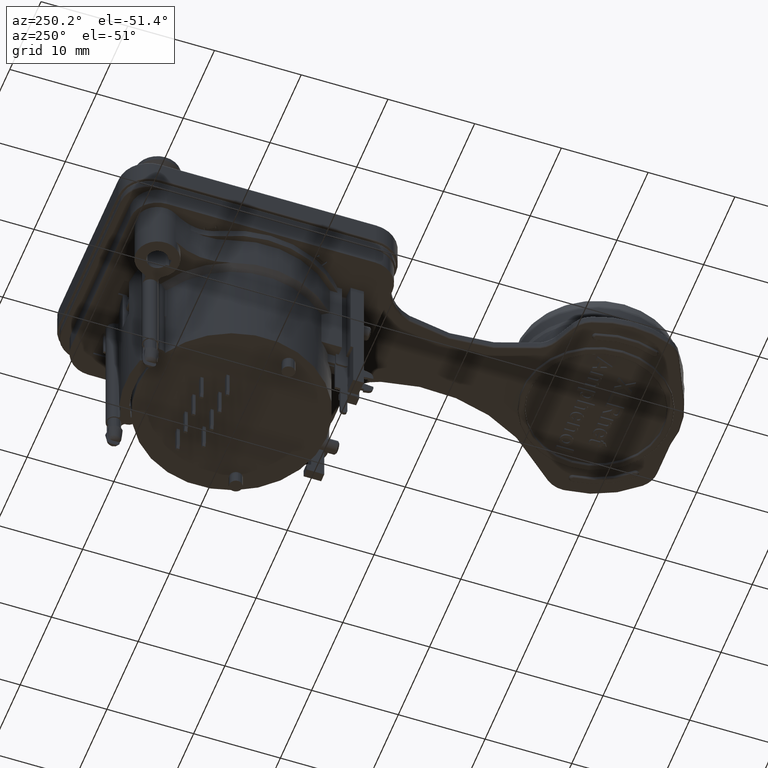
[diagram: clean part render]
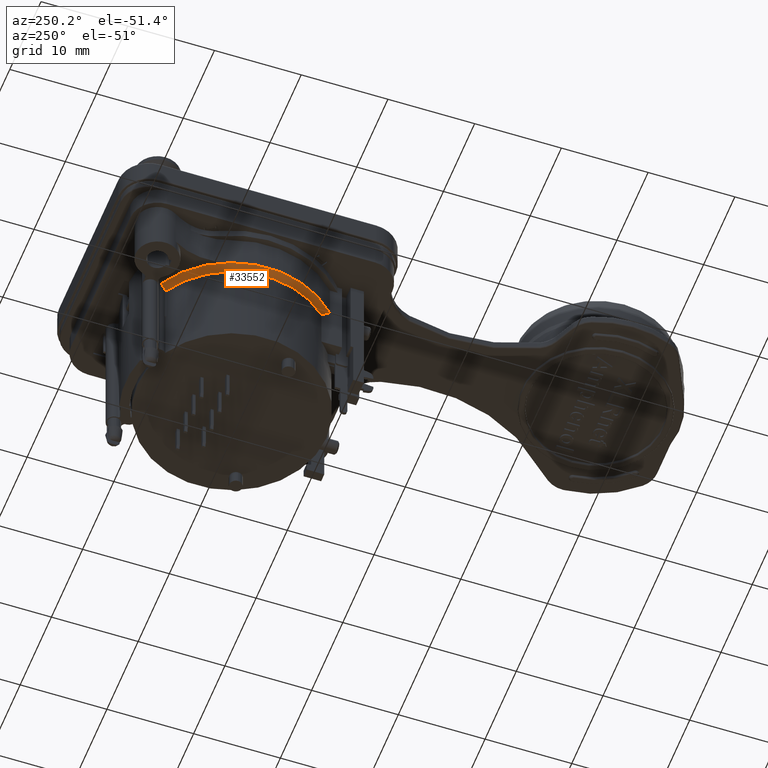
[diagram: same view with one face highlighted and labeled with its STEP entity id]
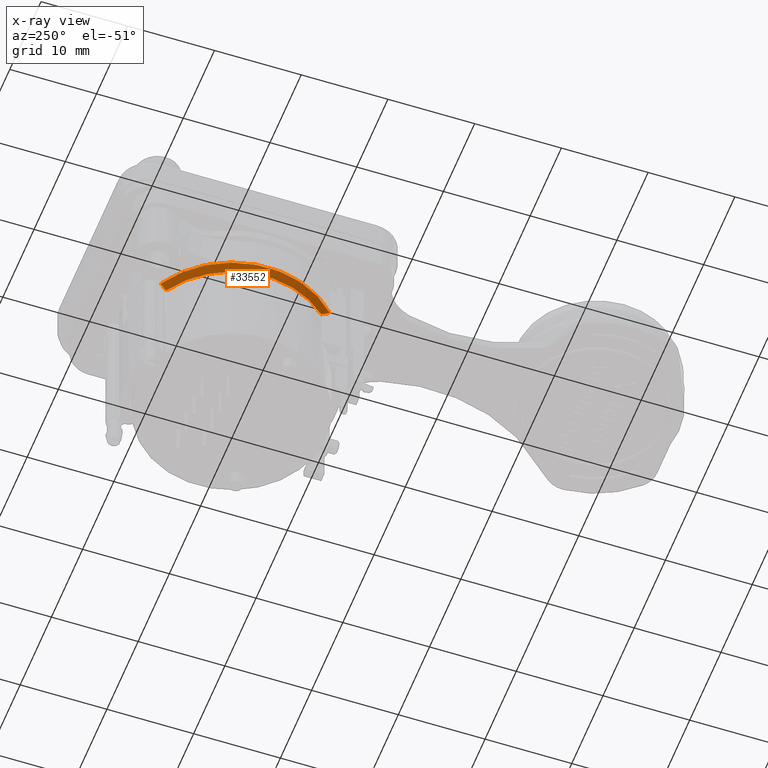
[diagram: x-ray of the same camera — body ghosted, the highlighted face saturated]
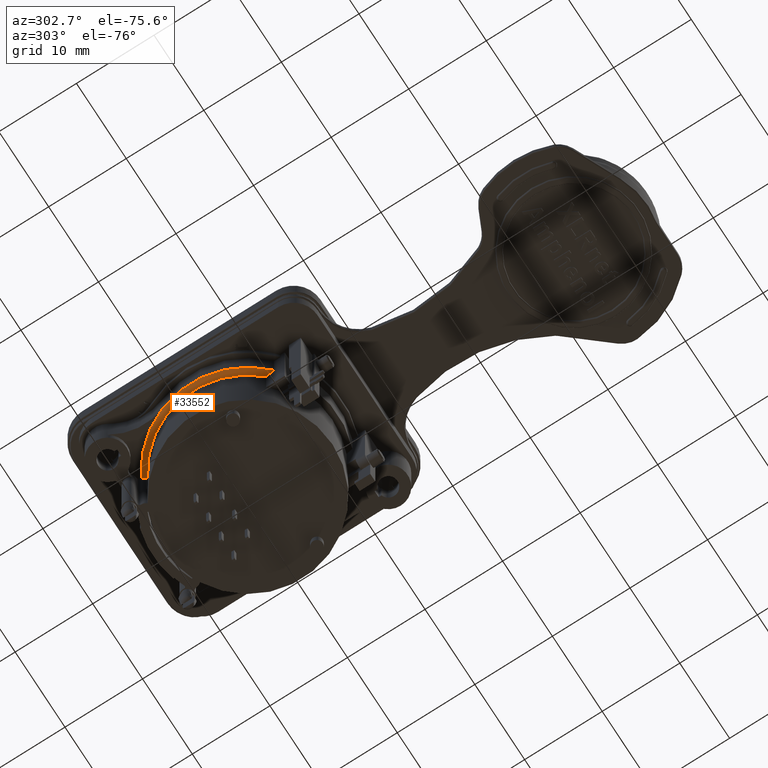
[diagram: same view with one face highlighted and labeled with its STEP entity id]
A machine part, auxiliary view. The second image highlights one B-rep face of the part: STEP entity #33552.
The next image is the same camera in x-ray: the body ghosted, the highlighted face saturated — about 0% of this face is hidden behind the body in this view.
A second angle (auxiliary view) of the same face is appended — the face is thin or edge-on in the first view.
In plain terms, the highlighted conical surface has half-angle 45 deg.
Its self-contained STEP definition (entity closure, byte-faithful):
#1015=(
BOUNDED_CURVE()
B_SPLINE_CURVE(2,(#90730,#90731,#90732),.UNSPECIFIED.,.F.,.F.)
B_SPLINE_CURVE_WITH_KNOTS((3,3),(8.73691020827419,8.99450641198548),
 .UNSPECIFIED.)
CURVE()
GEOMETRIC_REPRESENTATION_ITEM()
RATIONAL_B_SPLINE_CURVE((2.87066901525943,2.82152484132858,2.76785661768043))
REPRESENTATION_ITEM('')
);
#1103=CONICAL_SURFACE('',#35703,11.25,0.785398163397446);
#4548=FACE_OUTER_BOUND('',#6384,.T.);
#6384=EDGE_LOOP('',(#30035,#30036,#30037,#30038,#30039,#30040));
#8086=B_SPLINE_CURVE_WITH_KNOTS('',3,(#91007,#91008,#91009,#91010,#91011,
#91012,#91013,#91014,#91015,#91016,#91017,#91018),.UNSPECIFIED.,.F.,.F.,
(4,2,2,2,2,4),(0.0725353796841605,0.0742043170634966,0.0849765618743428,
0.0957488066851889,0.103101509806697,0.110454212928206),.UNSPECIFIED.);
#8087=B_SPLINE_CURVE_WITH_KNOTS('',3,(#91020,#91021,#91022,#91023,#91024,
#91025,#91026,#91027,#91028),.UNSPECIFIED.,.F.,.F.,(4,2,3,4),(0.600541604216335,
0.612655591836204,0.660240279945532,0.667731266076222),.UNSPECIFIED.);
#13614=CIRCLE('',#35669,11.6);
#13625=CIRCLE('',#35686,11.6);
#13632=CIRCLE('',#35704,10.9);
#16417=VERTEX_POINT('',#90726);
#16418=VERTEX_POINT('',#90728);
#16473=VERTEX_POINT('',#90922);
#16483=VERTEX_POINT('',#90955);
#16494=VERTEX_POINT('',#91005);
#16495=VERTEX_POINT('',#91006);
#20993=EDGE_CURVE('',#16417,#16418,#1015,.T.);
#21085=EDGE_CURVE('',#16418,#16473,#13614,.T.);
#21102=EDGE_CURVE('',#16473,#16483,#13625,.T.);
#21125=EDGE_CURVE('',#16494,#16495,#8086,.F.);
#21126=EDGE_CURVE('',#16417,#16494,#13632,.T.);
#21127=EDGE_CURVE('',#16483,#16495,#8087,.T.);
#30035=ORIENTED_EDGE('',*,*,#21125,.F.);
#30036=ORIENTED_EDGE('',*,*,#21126,.F.);
#30037=ORIENTED_EDGE('',*,*,#20993,.T.);
#30038=ORIENTED_EDGE('',*,*,#21085,.T.);
#30039=ORIENTED_EDGE('',*,*,#21102,.T.);
#30040=ORIENTED_EDGE('',*,*,#21127,.T.);
#33552=ADVANCED_FACE('',(#4548),#1103,.T.);
#35669=AXIS2_PLACEMENT_3D('',#90924,#41673,#41674);
#35686=AXIS2_PLACEMENT_3D('',#90957,#41713,#41714);
#35703=AXIS2_PLACEMENT_3D('',#91004,#41761,#41762);
#35704=AXIS2_PLACEMENT_3D('',#91019,#41763,#41764);
#41673=DIRECTION('center_axis',(5.72118872610934E-18,8.32667268468867E-17,
-1.));
#41674=DIRECTION('ref_axis',(-0.476560224863369,0.879141827055325,7.04767713872882E-17));
#41713=DIRECTION('center_axis',(5.72118872610934E-18,8.32667268468867E-17,
-1.));
#41714=DIRECTION('ref_axis',(-0.476560224863369,0.879141827055325,7.04767713872882E-17));
#41761=DIRECTION('center_axis',(-5.72118872610934E-18,-8.32667268468867E-17,
1.));
#41762=DIRECTION('ref_axis',(-0.476560224863369,0.879141827055325,7.04767713872882E-17));
#41763=DIRECTION('center_axis',(5.72118872610934E-18,8.32667268468867E-17,
-1.));
#41764=DIRECTION('ref_axis',(1.,7.16992331441682E-16,5.7211887261095E-18));
#90726=CARTESIAN_POINT('',(-7.945,-7.46237060189321,-5.75));
#90728=CARTESIAN_POINT('',(-7.94500000000001,-8.45203969465359,-5.05));
#90730=CARTESIAN_POINT('Ctrl Pts',(-7.945,-7.46237060189321,-5.75));
#90731=CARTESIAN_POINT('Ctrl Pts',(-7.94500000000001,-7.94181029571935,
-5.42176544251479));
#90732=CARTESIAN_POINT('Ctrl Pts',(-7.94500000000001,-8.45203969465359,
-5.05));
#90922=CARTESIAN_POINT('',(-10.8839381111525,4.01246697090478,-5.05));
#90924=CARTESIAN_POINT('Origin',(2.88920030668527E-17,4.20496970576781E-16,
-5.05));
#90955=CARTESIAN_POINT('',(-5.52809860841507,10.1980451938418,-5.05));
#90957=CARTESIAN_POINT('Origin',(2.88920030668527E-17,4.20496970576781E-16,
-5.05));
#91004=CARTESIAN_POINT('Origin',(3.0894419120991E-17,4.49640324973192E-16,
-5.4));
#91005=CARTESIAN_POINT('',(-5.45640509806144,9.43597601765971,-5.75));
#91006=CARTESIAN_POINT('',(-5.38771837677929,9.71637514513338,-5.53984899884566));
#91007=CARTESIAN_POINT('Ctrl Pts',(-5.38771837677929,9.71637514513338,-5.53984899884566));
#91008=CARTESIAN_POINT('Ctrl Pts',(-5.38555317211245,9.71296763919498,-5.54387901778735));
#91009=CARTESIAN_POINT('Ctrl Pts',(-5.38351713093033,9.70953517177121,-5.54786822493614));
#91010=CARTESIAN_POINT('Ctrl Pts',(-5.36929760495279,9.68388930044824,-5.57719237257833));
#91011=CARTESIAN_POINT('Ctrl Pts',(-5.36036167450728,9.6573738740629,-5.60472003436689));
#91012=CARTESIAN_POINT('Ctrl Pts',(-5.35470222247258,9.6009883045619,-5.65674310202453));
#91013=CARTESIAN_POINT('Ctrl Pts',(-5.35788562033931,9.5711465303642,-5.6812590822224));
#91014=CARTESIAN_POINT('Ctrl Pts',(-5.37458708056961,9.52356855610605,-5.71453895949256));
#91015=CARTESIAN_POINT('Ctrl Pts',(-5.38543354542019,9.50270230174937,-5.72737582615661));
#91016=CARTESIAN_POINT('Ctrl Pts',(-5.41574531509394,9.46504544842061,-5.74509754715103));
#91017=CARTESIAN_POINT('Ctrl Pts',(-5.43518799398819,9.448244924937,-5.75));
#91018=CARTESIAN_POINT('Ctrl Pts',(-5.45640509806144,9.43597601765971,-5.75));
#91019=CARTESIAN_POINT('Origin',(3.28968351751293E-17,4.78783679369602E-16,
-5.75));
#91020=CARTESIAN_POINT('Ctrl Pts',(-5.52809860841508,10.1980451938425,-5.04999999999934));
#91021=CARTESIAN_POINT('Ctrl Pts',(-5.5280623807041,10.165717893102,-5.07843754692225));
#91022=CARTESIAN_POINT('Ctrl Pts',(-5.52628117939606,10.133612117511,-5.10748163829421));
#91023=CARTESIAN_POINT('Ctrl Pts',(-5.50935586132244,9.97763719655078,-5.25245811263549));
#91024=CARTESIAN_POINT('Ctrl Pts',(-5.46953446303821,9.86057761968216,-5.37406109292272));
#91025=CARTESIAN_POINT('Ctrl Pts',(-5.41513073969177,9.76249758371521,-5.48621927839856));
#91026=CARTESIAN_POINT('Ctrl Pts',(-5.40656627172447,9.74705740288565,-5.50387570203451));
#91027=CARTESIAN_POINT('Ctrl Pts',(-5.39742967367699,9.73165837305057,-5.52177369918418));
#91028=CARTESIAN_POINT('Ctrl Pts',(-5.38771837677929,9.71637514513338,-5.53984899884566));